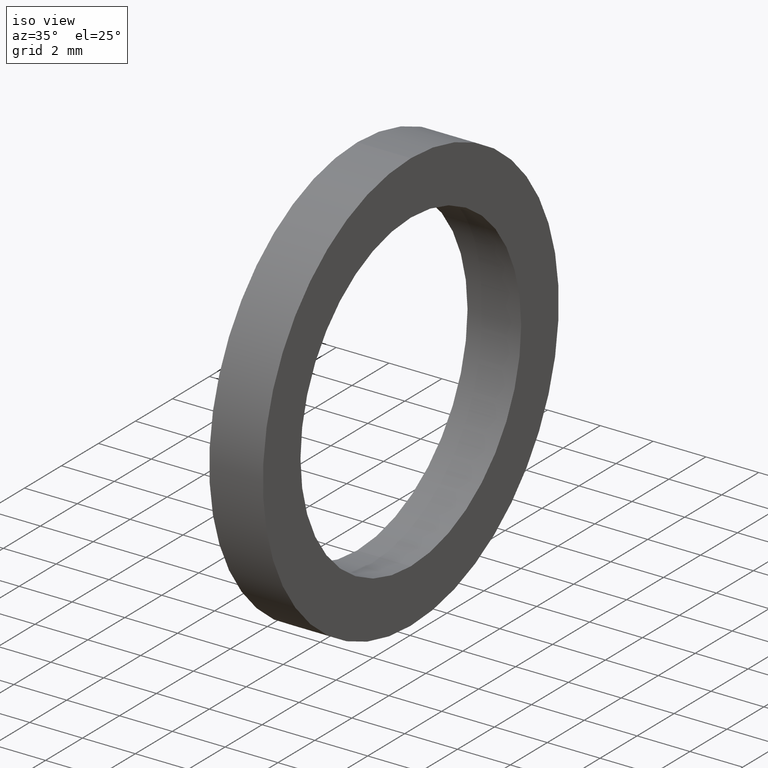
[diagram: clean part render]
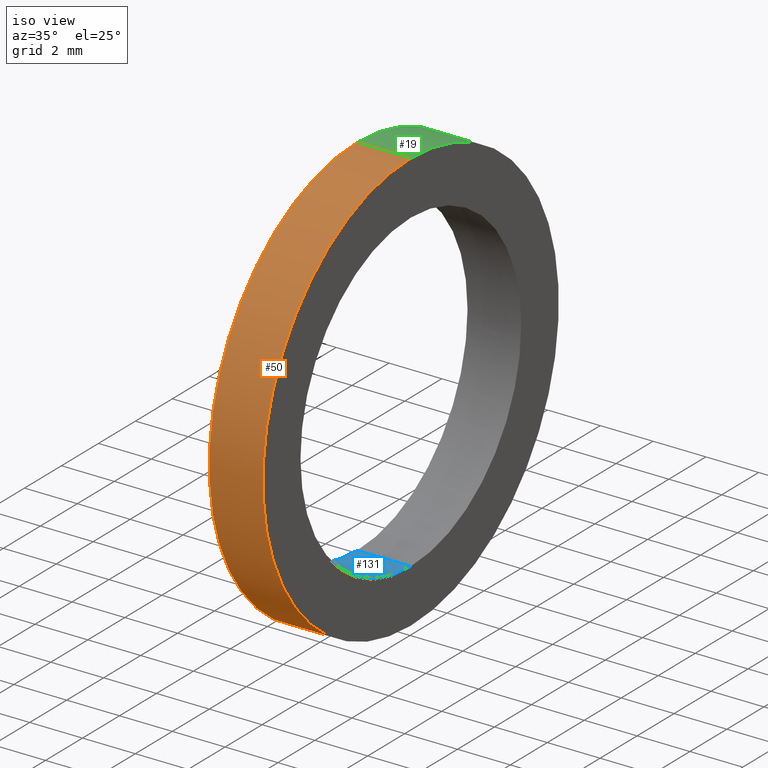
[diagram: same view with three faces highlighted in distinct colors, each labeled with its STEP entity id]
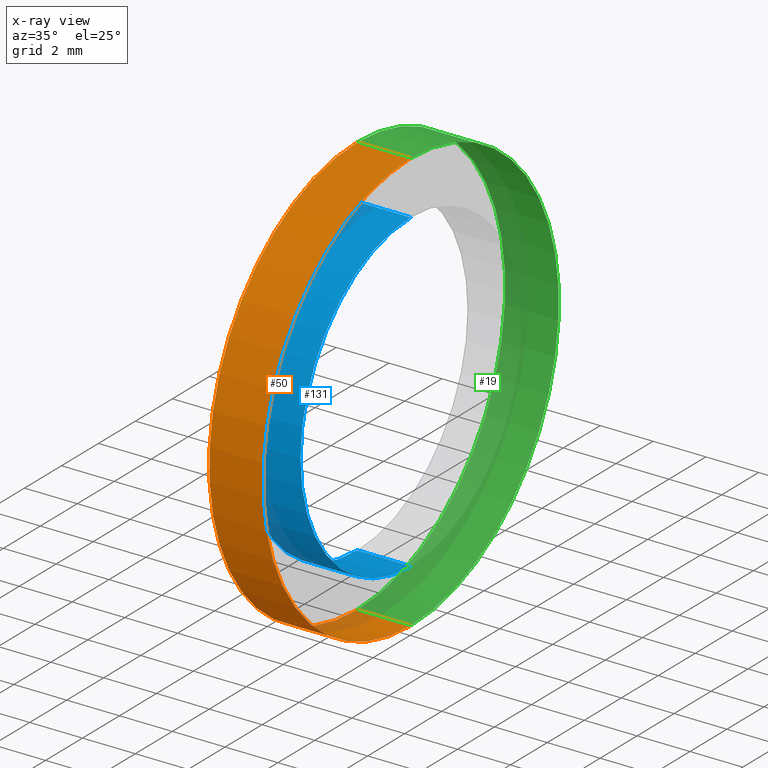
[diagram: x-ray of the same camera — body ghosted, the three highlighted faces saturated]
A machine part, iso view with three faces highlighted in distinct colors.
The next image is the same camera in x-ray (body ghosted, the three faces saturated) — at least one of them is partly hidden behind the body in this view.
Their STEP definitions:

[orange] entity #50 — the highlighted cylindrical surface (partial cylindrical patch) has radius 8.001 mm, axis along (-1, 0, 0).
#5 = LINE ( 'NONE', #171, #170 ) ;
#6 = DIRECTION ( 'NONE',  ( -1.000000000000000000, 0.0000000000000000000, 0.0000000000000000000 ) ) ;
#7 = VECTOR ( 'NONE', #6, 39.37007874015748100 ) ;
#8 = CARTESIAN_POINT ( 'NONE',  ( -1.721125226614714300, 0.0000000000000000000, 0.3150000000000000600 ) ) ;
#13 = LINE ( 'NONE', #8, #7 ) ;
#17 = CARTESIAN_POINT ( 'NONE',  ( 0.07999999999999996000, 0.0000000000000000000, 0.3150000000000000600 ) ) ;
#33 = CARTESIAN_POINT ( 'NONE',  ( 0.0000000000000000000, 0.0000000000000000000, 0.3150000000000000000 ) ) ;
#34 = CARTESIAN_POINT ( 'NONE',  ( 0.07999999999999996000, 3.857637417314163300E-017, -0.3150000000000000600 ) ) ;
#35 = DIRECTION ( 'NONE',  ( 0.0000000000000000000, 0.0000000000000000000, 1.000000000000000000 ) ) ;
#36 = DIRECTION ( 'NONE',  ( -1.000000000000000000, 0.0000000000000000000, 0.0000000000000000000 ) ) ;
#37 = CARTESIAN_POINT ( 'NONE',  ( 0.0000000000000000000, 0.0000000000000000000, 0.0000000000000000000 ) ) ;
#38 = AXIS2_PLACEMENT_3D ( 'NONE', #37, #36, #35 ) ;
#39 = CIRCLE ( 'NONE', #38, 0.3150000000000000000 ) ;
#44 = CARTESIAN_POINT ( 'NONE',  ( 0.0000000000000000000, 3.857637417314162700E-017, -0.3150000000000000000 ) ) ;
#45 = ORIENTED_EDGE ( 'NONE', *, *, #46, .T. ) ;
#46 = EDGE_CURVE ( 'NONE', #137, #59, #70, .T. ) ;
#47 = ORIENTED_EDGE ( 'NONE', *, *, #62, .T. ) ;
#49 = ORIENTED_EDGE ( 'NONE', *, *, #64, .F. ) ;
#50 = ADVANCED_FACE ( 'NONE', ( #71 ), #150, .T. ) ;
#51 = EDGE_LOOP ( 'NONE', ( #49, #45, #47, #132 ) ) ;
#59 = VERTEX_POINT ( 'NONE', #17 ) ;
#62 = EDGE_CURVE ( 'NONE', #59, #138, #13, .T. ) ;
#64 = EDGE_CURVE ( 'NONE', #137, #134, #5, .T. ) ;
#67 = DIRECTION ( 'NONE',  ( -1.000000000000000000, 0.0000000000000000000, 0.0000000000000000000 ) ) ;
#68 = CARTESIAN_POINT ( 'NONE',  ( 0.07999999999999996000, 0.0000000000000000000, 0.0000000000000000000 ) ) ;
#69 = AXIS2_PLACEMENT_3D ( 'NONE', #68, #67, #152 ) ;
#70 = CIRCLE ( 'NONE', #69, 0.3150000000000000600 ) ;
#71 = FACE_OUTER_BOUND ( 'NONE', #51, .T. ) ;
#132 = ORIENTED_EDGE ( 'NONE', *, *, #135, .F. ) ;
#134 = VERTEX_POINT ( 'NONE', #44 ) ;
#135 = EDGE_CURVE ( 'NONE', #134, #138, #39, .T. ) ;
#137 = VERTEX_POINT ( 'NONE', #34 ) ;
#138 = VERTEX_POINT ( 'NONE', #33 ) ;
#147 = DIRECTION ( 'NONE',  ( 0.0000000000000000000, 0.0000000000000000000, 1.000000000000000000 ) ) ;
#148 = DIRECTION ( 'NONE',  ( -1.000000000000000000, 0.0000000000000000000, 0.0000000000000000000 ) ) ;
#149 = AXIS2_PLACEMENT_3D ( 'NONE', #151, #148, #147 ) ;
#150 = CYLINDRICAL_SURFACE ( 'NONE', #149, 0.3150000000000000600 ) ;
#151 = CARTESIAN_POINT ( 'NONE',  ( -1.721125226614714300, 0.0000000000000000000, 0.0000000000000000000 ) ) ;
#152 = DIRECTION ( 'NONE',  ( 0.0000000000000000000, 0.0000000000000000000, 1.000000000000000000 ) ) ;
#169 = DIRECTION ( 'NONE',  ( -1.000000000000000000, 0.0000000000000000000, 0.0000000000000000000 ) ) ;
#170 = VECTOR ( 'NONE', #169, 39.37007874015748100 ) ;
#171 = CARTESIAN_POINT ( 'NONE',  ( -1.721125226614714300, 3.857637417314163300E-017, -0.3150000000000000600 ) ) ;

[blue] entity #131 — the highlighted cylindrical surface (partial cylindrical patch) has radius 5.969 mm, axis along (-1, 0, 0).
#18 = CARTESIAN_POINT ( 'NONE',  ( 0.0000000000000000000, 0.0000000000000000000, 0.2349999999999999900 ) ) ;
#21 = EDGE_CURVE ( 'NONE', #124, #58, #81, .T. ) ;
#22 = VERTEX_POINT ( 'NONE', #76 ) ;
#23 = EDGE_CURVE ( 'NONE', #130, #124, #75, .T. ) ;
#40 = DIRECTION ( 'NONE',  ( 0.0000000000000000000, 0.0000000000000000000, 1.000000000000000000 ) ) ;
#41 = DIRECTION ( 'NONE',  ( -1.000000000000000000, 0.0000000000000000000, 0.0000000000000000000 ) ) ;
#42 = AXIS2_PLACEMENT_3D ( 'NONE', #153, #41, #40 ) ;
#43 = CYLINDRICAL_SURFACE ( 'NONE', #42, 0.2349999999999999600 ) ;
#54 = ORIENTED_EDGE ( 'NONE', *, *, #57, .F. ) ;
#57 = EDGE_CURVE ( 'NONE', #22, #58, #121, .T. ) ;
#58 = VERTEX_POINT ( 'NONE', #18 ) ;
#72 = DIRECTION ( 'NONE',  ( -1.000000000000000000, 0.0000000000000000000, 0.0000000000000000000 ) ) ;
#73 = VECTOR ( 'NONE', #72, 39.37007874015748100 ) ;
#74 = CARTESIAN_POINT ( 'NONE',  ( -1.721125226614714300, 2.877919977996279200E-017, -0.2349999999999999600 ) ) ;
#75 = LINE ( 'NONE', #74, #73 ) ;
#76 = CARTESIAN_POINT ( 'NONE',  ( 0.07999999999999996000, 0.0000000000000000000, 0.2349999999999999600 ) ) ;
#77 = DIRECTION ( 'NONE',  ( 0.0000000000000000000, 0.0000000000000000000, 1.000000000000000000 ) ) ;
#78 = DIRECTION ( 'NONE',  ( -1.000000000000000000, 0.0000000000000000000, 0.0000000000000000000 ) ) ;
#79 = CARTESIAN_POINT ( 'NONE',  ( 0.0000000000000000000, 0.0000000000000000000, 0.0000000000000000000 ) ) ;
#80 = AXIS2_PLACEMENT_3D ( 'NONE', #79, #78, #77 ) ;
#81 = CIRCLE ( 'NONE', #80, 0.2349999999999999900 ) ;
#114 = DIRECTION ( 'NONE',  ( -1.000000000000000000, 0.0000000000000000000, 0.0000000000000000000 ) ) ;
#115 = VECTOR ( 'NONE', #114, 39.37007874015748100 ) ;
#116 = CARTESIAN_POINT ( 'NONE',  ( -1.721125226614714300, 0.0000000000000000000, 0.2349999999999999600 ) ) ;
#121 = LINE ( 'NONE', #116, #115 ) ;
#122 = ORIENTED_EDGE ( 'NONE', *, *, #21, .T. ) ;
#123 = ORIENTED_EDGE ( 'NONE', *, *, #23, .T. ) ;
#124 = VERTEX_POINT ( 'NONE', #161 ) ;
#127 = EDGE_LOOP ( 'NONE', ( #128, #123, #122, #54 ) ) ;
#128 = ORIENTED_EDGE ( 'NONE', *, *, #129, .F. ) ;
#129 = EDGE_CURVE ( 'NONE', #130, #22, #160, .T. ) ;
#130 = VERTEX_POINT ( 'NONE', #155 ) ;
#131 = ADVANCED_FACE ( 'NONE', ( #154 ), #43, .F. ) ;
#153 = CARTESIAN_POINT ( 'NONE',  ( -1.721125226614714300, 0.0000000000000000000, 0.0000000000000000000 ) ) ;
#154 = FACE_OUTER_BOUND ( 'NONE', #127, .T. ) ;
#155 = CARTESIAN_POINT ( 'NONE',  ( 0.07999999999999996000, 2.877919977996279200E-017, -0.2349999999999999600 ) ) ;
#156 = DIRECTION ( 'NONE',  ( 0.0000000000000000000, 0.0000000000000000000, 1.000000000000000000 ) ) ;
#157 = DIRECTION ( 'NONE',  ( -1.000000000000000000, 0.0000000000000000000, 0.0000000000000000000 ) ) ;
#158 = CARTESIAN_POINT ( 'NONE',  ( 0.07999999999999996000, 0.0000000000000000000, 0.0000000000000000000 ) ) ;
#159 = AXIS2_PLACEMENT_3D ( 'NONE', #158, #157, #156 ) ;
#160 = CIRCLE ( 'NONE', #159, 0.2349999999999999600 ) ;
#161 = CARTESIAN_POINT ( 'NONE',  ( 0.0000000000000000000, 2.877919977996279800E-017, -0.2350000000000000100 ) ) ;

[green] entity #19 — the highlighted cylindrical surface (partial cylindrical patch) has radius 8.001 mm, axis along (-1, 0, 0).
#5 = LINE ( 'NONE', #171, #170 ) ;
#6 = DIRECTION ( 'NONE',  ( -1.000000000000000000, 0.0000000000000000000, 0.0000000000000000000 ) ) ;
#7 = VECTOR ( 'NONE', #6, 39.37007874015748100 ) ;
#8 = CARTESIAN_POINT ( 'NONE',  ( -1.721125226614714300, 0.0000000000000000000, 0.3150000000000000600 ) ) ;
#13 = LINE ( 'NONE', #8, #7 ) ;
#17 = CARTESIAN_POINT ( 'NONE',  ( 0.07999999999999996000, 0.0000000000000000000, 0.3150000000000000600 ) ) ;
#19 = ADVANCED_FACE ( 'NONE', ( #87 ), #85, .T. ) ;
#20 = EDGE_LOOP ( 'NONE', ( #55, #133, #65, #61 ) ) ;
#28 = DIRECTION ( 'NONE',  ( 0.0000000000000000000, 0.0000000000000000000, 1.000000000000000000 ) ) ;
#29 = DIRECTION ( 'NONE',  ( -1.000000000000000000, 0.0000000000000000000, 0.0000000000000000000 ) ) ;
#30 = CARTESIAN_POINT ( 'NONE',  ( 0.0000000000000000000, 0.0000000000000000000, 0.0000000000000000000 ) ) ;
#31 = AXIS2_PLACEMENT_3D ( 'NONE', #30, #29, #28 ) ;
#32 = CIRCLE ( 'NONE', #31, 0.3150000000000000000 ) ;
#33 = CARTESIAN_POINT ( 'NONE',  ( 0.0000000000000000000, 0.0000000000000000000, 0.3150000000000000000 ) ) ;
#34 = CARTESIAN_POINT ( 'NONE',  ( 0.07999999999999996000, 3.857637417314163300E-017, -0.3150000000000000600 ) ) ;
#44 = CARTESIAN_POINT ( 'NONE',  ( 0.0000000000000000000, 3.857637417314162700E-017, -0.3150000000000000000 ) ) ;
#55 = ORIENTED_EDGE ( 'NONE', *, *, #56, .T. ) ;
#56 = EDGE_CURVE ( 'NONE', #59, #137, #120, .T. ) ;
#59 = VERTEX_POINT ( 'NONE', #17 ) ;
#61 = ORIENTED_EDGE ( 'NONE', *, *, #62, .F. ) ;
#62 = EDGE_CURVE ( 'NONE', #59, #138, #13, .T. ) ;
#64 = EDGE_CURVE ( 'NONE', #137, #134, #5, .T. ) ;
#65 = ORIENTED_EDGE ( 'NONE', *, *, #140, .F. ) ;
#82 = DIRECTION ( 'NONE',  ( 0.0000000000000000000, 0.0000000000000000000, 1.000000000000000000 ) ) ;
#83 = DIRECTION ( 'NONE',  ( -1.000000000000000000, 0.0000000000000000000, 0.0000000000000000000 ) ) ;
#84 = AXIS2_PLACEMENT_3D ( 'NONE', #86, #83, #82 ) ;
#85 = CYLINDRICAL_SURFACE ( 'NONE', #84, 0.3150000000000000600 ) ;
#86 = CARTESIAN_POINT ( 'NONE',  ( -1.721125226614714300, 0.0000000000000000000, 0.0000000000000000000 ) ) ;
#87 = FACE_OUTER_BOUND ( 'NONE', #20, .T. ) ;
#117 = DIRECTION ( 'NONE',  ( 0.0000000000000000000, 0.0000000000000000000, 1.000000000000000000 ) ) ;
#118 = DIRECTION ( 'NONE',  ( -1.000000000000000000, 0.0000000000000000000, 0.0000000000000000000 ) ) ;
#119 = AXIS2_PLACEMENT_3D ( 'NONE', #146, #118, #117 ) ;
#120 = CIRCLE ( 'NONE', #119, 0.3150000000000000600 ) ;
#133 = ORIENTED_EDGE ( 'NONE', *, *, #64, .T. ) ;
#134 = VERTEX_POINT ( 'NONE', #44 ) ;
#137 = VERTEX_POINT ( 'NONE', #34 ) ;
#138 = VERTEX_POINT ( 'NONE', #33 ) ;
#140 = EDGE_CURVE ( 'NONE', #138, #134, #32, .T. ) ;
#146 = CARTESIAN_POINT ( 'NONE',  ( 0.07999999999999996000, 0.0000000000000000000, 0.0000000000000000000 ) ) ;
#169 = DIRECTION ( 'NONE',  ( -1.000000000000000000, 0.0000000000000000000, 0.0000000000000000000 ) ) ;
#170 = VECTOR ( 'NONE', #169, 39.37007874015748100 ) ;
#171 = CARTESIAN_POINT ( 'NONE',  ( -1.721125226614714300, 3.857637417314163300E-017, -0.3150000000000000600 ) ) ;